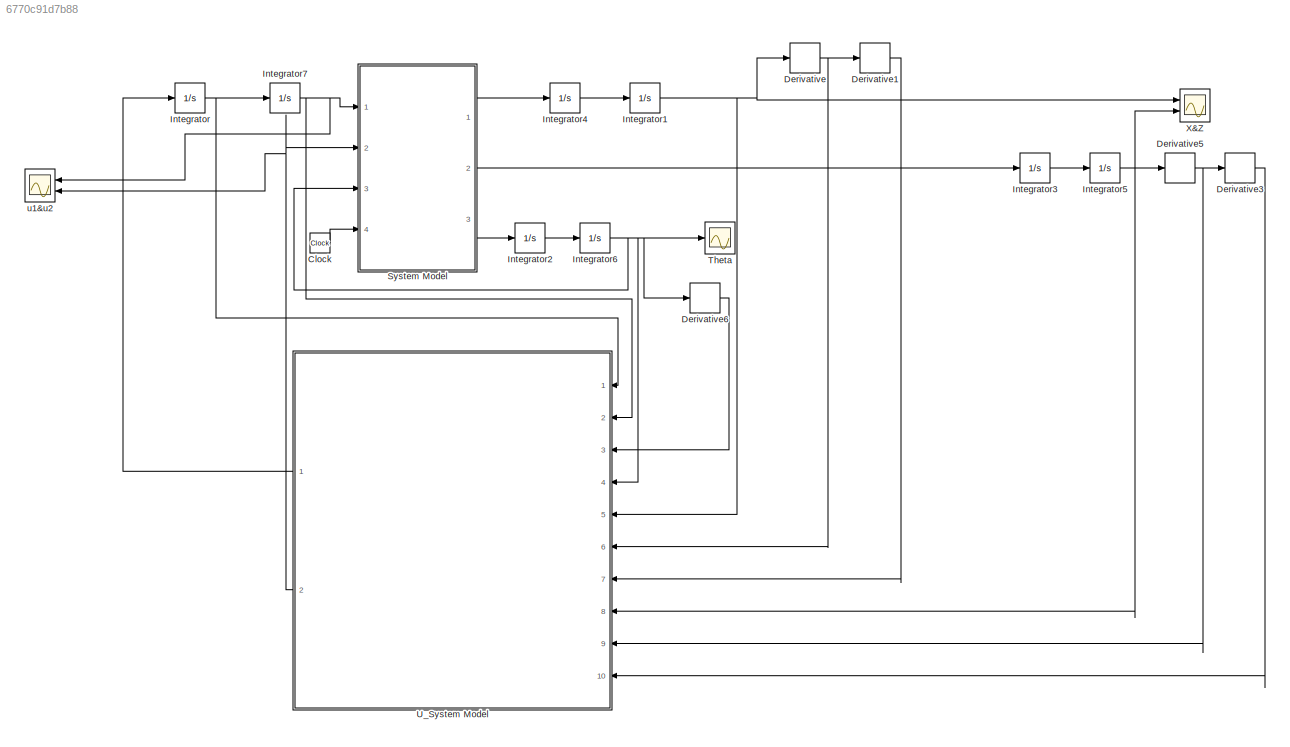
MODEL slx_6770c91d7b88
KIND model
CONFIG AbsTol = auto
CONFIG EnableMultiTasking = off
CONFIG FixedStep = 0.001
CONFIG MaxStep = auto
CONFIG MinStep = auto
CONFIG RelTol = 1e-3
CONFIG SampleTimeConstraint = Unconstrained
CONFIG Solver = ode4
CONFIG SolverName = ode4
CONFIG StartTime = 0.0
CONFIG StopTime = 10.0
BLOCK [Clock] Clock
BLOCK [Derivative] Derivative
BLOCK [Derivative] Derivative1
BLOCK [Derivative] Derivative3
BLOCK [Derivative] Derivative5
BLOCK [Derivative] Derivative6
BLOCK [Integrator] Integrator
  Ports = [1, 1]
BLOCK [Integrator] Integrator1
  InitialCondition = 1
  Ports = [1, 1]
BLOCK [Integrator] Integrator2
  Ports = [1, 1]
BLOCK [Integrator] Integrator3
  Ports = [1, 1]
BLOCK [Integrator] Integrator4
  InitialCondition = 1
  Ports = [1, 1]
BLOCK [Integrator] Integrator5
  Ports = [1, 1]
BLOCK [Integrator] Integrator6
  Ports = [1, 1]
BLOCK [Integrator] Integrator7
  InitialCondition = 1
  Ports = [1, 1]
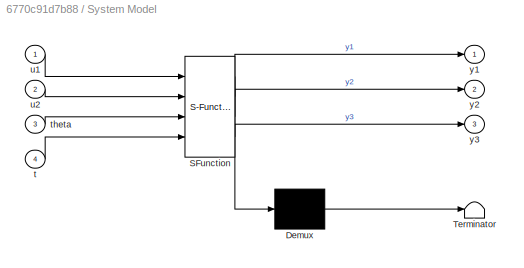
BLOCK [SubSystem] System Model
  ErrorFcn = Stateflow.Translate.translate
  PermitHierarchicalResolution = ExplicitOnly
  Ports = [4, 3]
  RequestExecContextInheritance = off
  SFBlockType = MATLAB Function
  TreatAsAtomicUnit = on
  Variant = off
BLOCK [Demux] System Model/ Demux 
  Outputs = 1
  Ports = [1, 1]
BLOCK [S-Function] System Model/ SFunction 
  EnableBusSupport = on
  FunctionName = sf_sfun
  PortCounts = [4 4]
  Ports = [4, 4]
  SFcnIsStateOwnerBlock = off
  SFunctionDeploymentMode = off
  Tag = Stateflow S-Function NOLCOlab2Q2 2
BLOCK [Terminator] System Model/ Terminator 
BLOCK [Inport] System Model/t
  IconDisplay = Port number
  Port = 4
BLOCK [Inport] System Model/theta
  IconDisplay = Port number
  Port = 3
BLOCK [Inport] System Model/u1
  IconDisplay = Port number
BLOCK [Inport] System Model/u2
  IconDisplay = Port number
  Port = 2
BLOCK [Outport] System Model/y1
  IconDisplay = Port number
BLOCK [Outport] System Model/y2
  IconDisplay = Port number
  Port = 2
BLOCK [Outport] System Model/y3
  IconDisplay = Port number
  Port = 3
BLOCK [Scope] Theta
  NumInputPorts = 1
  Ports = [1]
  ScopeSpecificationString = Simulink.scopes.TimeScopeBlockCfg('CurrentConfiguration', extmgr.ConfigurationSet(extmgr.Configuration('Core','General UI',true),extmgr.Configuration('Core','Source UI',true),extmgr.Configuration('Sources','WiredSimulink',true,'DataLoggingVariableName','ScopeData1','DataLoggingSaveFormat','Array','DataLoggingDecimation','1','DataLoggingDecimateData',true),extmgr.Configuration('Visuals','Time Domai...<+1490ch>
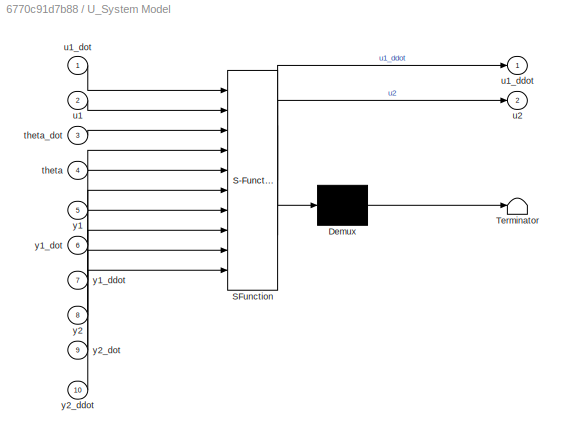
BLOCK [SubSystem] U_System Model
  ErrorFcn = Stateflow.Translate.translate
  PermitHierarchicalResolution = ExplicitOnly
  Ports = [10, 2]
  RequestExecContextInheritance = off
  SFBlockType = MATLAB Function
  TreatAsAtomicUnit = on
  Variant = off
BLOCK [Demux] U_System Model/ Demux 
  Outputs = 1
  Ports = [1, 1]
BLOCK [S-Function] U_System Model/ SFunction 
  EnableBusSupport = on
  FunctionName = sf_sfun
  PortCounts = [10 3]
  Ports = [10, 3]
  SFcnIsStateOwnerBlock = off
  SFunctionDeploymentMode = off
  Tag = Stateflow S-Function NOLCOlab2Q2 1
BLOCK [Terminator] U_System Model/ Terminator 
BLOCK [Inport] U_System Model/theta
  IconDisplay = Port number
  Port = 4
BLOCK [Inport] U_System Model/theta_dot
  IconDisplay = Port number
  Port = 3
BLOCK [Inport] U_System Model/u1
  IconDisplay = Port number
  Port = 2
BLOCK [Outport] U_System Model/u1_ddot
  IconDisplay = Port number
BLOCK [Inport] U_System Model/u1_dot
  IconDisplay = Port number
BLOCK [Outport] U_System Model/u2
  IconDisplay = Port number
  Port = 2
BLOCK [Inport] U_System Model/y1
  IconDisplay = Port number
  Port = 5
BLOCK [Inport] U_System Model/y1_ddot
  IconDisplay = Port number
  Port = 7
BLOCK [Inport] U_System Model/y1_dot
  IconDisplay = Port number
  Port = 6
BLOCK [Inport] U_System Model/y2
  IconDisplay = Port number
  Port = 8
BLOCK [Inport] U_System Model/y2_ddot
  IconDisplay = Port number
  Port = 10
BLOCK [Inport] U_System Model/y2_dot
  IconDisplay = Port number
  Port = 9
BLOCK [Scope] X&Z
  NumInputPorts = 2
  Ports = [2]
  ScopeSpecificationString = Simulink.scopes.TimeScopeBlockCfg('CurrentConfiguration', extmgr.ConfigurationSet(extmgr.Configuration('Core','General UI',true),extmgr.Configuration('Core','Source UI',true),extmgr.Configuration('Sources','WiredSimulink',true,'DataLoggingSaveFormat','Array','DataLoggingDecimation','1','DataLoggingDecimateData',true),extmgr.Configuration('Visuals','Time Domain',true,'SerializedDisplays',{struct('M...<+1849ch>
BLOCK [Scope] u1&u2
  NumInputPorts = 2
  Ports = [2]
  ScopeSpecificationString = Simulink.scopes.TimeScopeBlockCfg('CurrentConfiguration', extmgr.ConfigurationSet(extmgr.Configuration('Core','General UI',true),extmgr.Configuration('Core','Source UI',true),extmgr.Configuration('Sources','WiredSimulink',true,'DataLoggingSaveFormat','Array','DataLoggingDecimation','1','DataLoggingDecimateData',true,'DataLoggingVariableName','ScopeData1'),extmgr.Configuration('Visuals','Time Domai...<+1774ch>
LINE Clock:1 -> System Model:4
LINE Derivative1:1 -> U_System Model:7
LINE Derivative3:1 -> U_System Model:10
NET Derivative5:1 -> Derivative3:1, U_System Model:9
LINE Derivative6:1 -> U_System Model:3
NET Derivative:1 -> Derivative1:1, U_System Model:6
NET Integrator1:1 -> Derivative:1, U_System Model:5, X&Z:1
LINE Integrator2:1 -> Integrator6:1
LINE Integrator3:1 -> Integrator5:1
LINE Integrator4:1 -> Integrator1:1
NET Integrator5:1 -> Derivative5:1, U_System Model:8, X&Z:2
NET Integrator6:1 -> Derivative6:1, System Model:3, Theta:1, U_System Model:4
NET Integrator7:1 -> System Model:1, U_System Model:2, u1&u2:1
NET Integrator:1 -> Integrator7:1, U_System Model:1
LINE System Model:1 -> Integrator4:1
LINE System Model:2 -> Integrator3:1
LINE System Model:3 -> Integrator2:1
LINE U_System Model:1 -> Integrator:1
NET U_System Model:2 -> System Model:2, u1&u2:2
note: NET lines group one-source signal fan-out (src -> all destinations, sorted); 1:1 wires keep LINE
CHART U_System Model states=1 transitions=1
  STATE_LABEL 'eML_blk_kernel()'
  STATE_LABEL 'SCRIPT:\nfunction [u1_ddot,u2]= fcn(u1_dot,u1,theta_dot,theta,y1,y1_dot,y1_ddot,y2,y2_dot,y2_ddot)\n% Gain Values:\nk1 = 4;\nk2 = 6;\nk3 = 4;\nk4 = 1;\n% y_dddot calculations(differential equations)\ny1_dddot = -u1_dot*sin(theta) - u1*theta_dot*cos(theta);\ny2_dddot = u1_dot*cos(theta) - u1*theta_dot*sin(theta);\n\n% Alpha Matrix\nalpha = [-2*u1_dot*cos(theta)*theta_dot + u1*sin(theta)*(theta_dot^2);\n        ...<+329ch>'
CHART System Model states=1 transitions=1
  STATE_LABEL 'eML_blk_kernel()'
  STATE_LABEL 'SCRIPT:\nfunction [y1,y2,y3]= fcn(u1,u2,theta,t)\ndel_t = 0;\nx_ddot = -u1*sin(theta);\nz_ddot = cos(theta)*u1 - 1;\ntheta_ddot = u2 + del_t*sin(t);\ny1 = x_ddot;\ny2 = z_ddot;\ny3 = theta_ddot;\nend'
